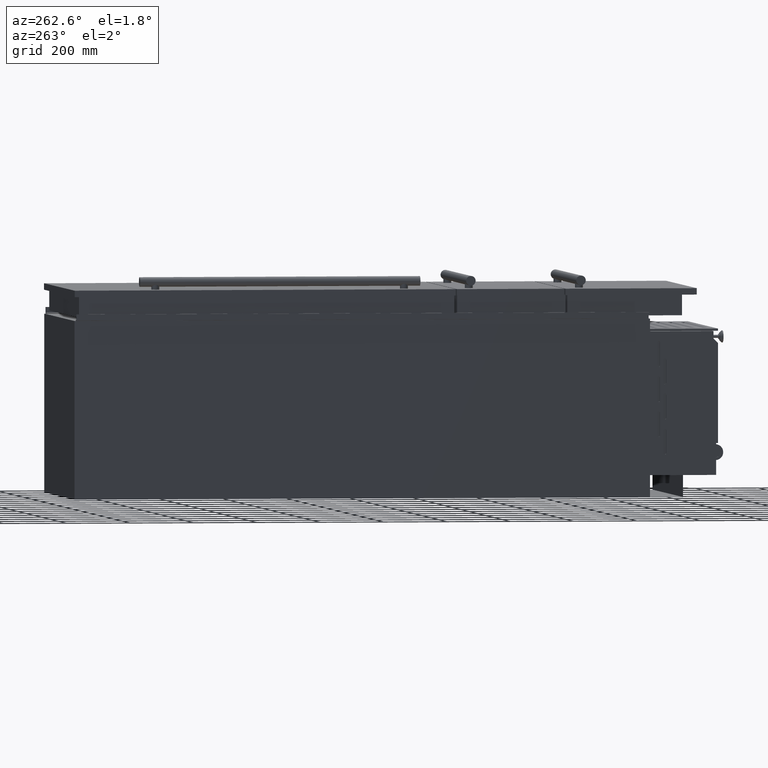
[diagram: clean part render]
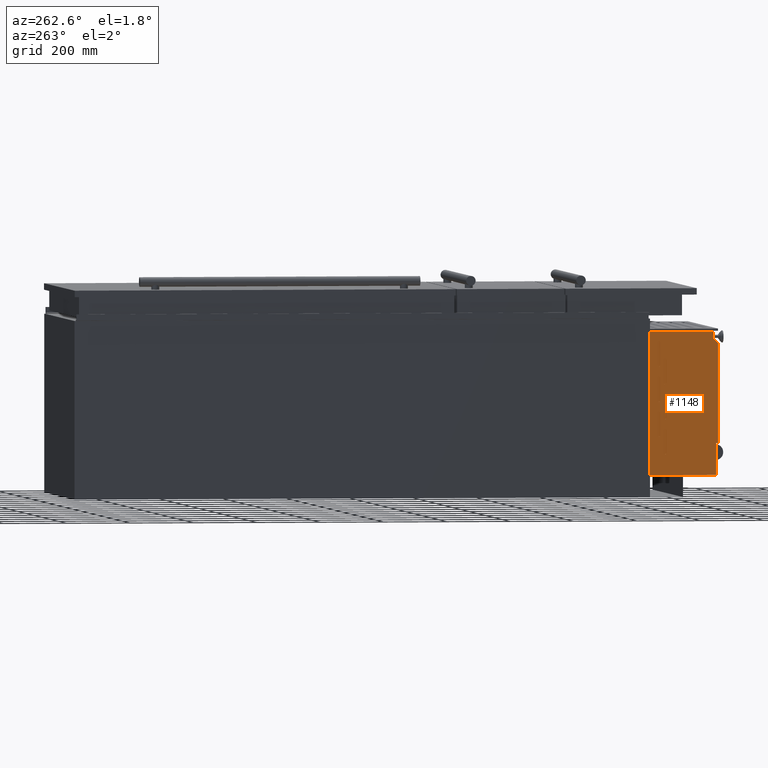
[diagram: same view with one face highlighted and labeled with its STEP entity id]
A machine part, auxiliary view. The second image highlights one B-rep face of the part: STEP entity #1148.
In plain terms, the highlighted planar face has unit normal (1, 0, 0).
Its self-contained STEP definition (entity closure, byte-faithful):
#17 = ORIENTED_EDGE ( 'NONE', *, *, #10392, .T. ) ;
#163 = CIRCLE ( 'NONE', #571, 4.000000000000003600 ) ;
#167 = VECTOR ( 'NONE', #3476, 1000.000000000000000 ) ;
#190 = ORIENTED_EDGE ( 'NONE', *, *, #7250, .T. ) ;
#192 = EDGE_CURVE ( 'NONE', #6109, #6530, #6331, .T. ) ;
#225 = AXIS2_PLACEMENT_3D ( 'NONE', #8890, #3399, #5663 ) ;
#235 = DIRECTION ( 'NONE',  ( 1.000000000000000000, -0.0000000000000000000, -0.0000000000000000000 ) ) ;
#246 = VERTEX_POINT ( 'NONE', #12949 ) ;
#305 = DIRECTION ( 'NONE',  ( 0.0000000000000000000, 0.0000000000000000000, -1.000000000000000000 ) ) ;
#316 = VECTOR ( 'NONE', #2005, 1000.000000000000000 ) ;
#331 = CARTESIAN_POINT ( 'NONE',  ( -368.0000000000000000, -828.3499999999998000, 95.00000000000011400 ) ) ;
#344 = DIRECTION ( 'NONE',  ( -0.0000000000000000000, -1.000000000000000000, 9.570888143321735400E-015 ) ) ;
#360 = CARTESIAN_POINT ( 'NONE',  ( -368.0000000000000000, -1010.050000000000800, -210.3999999999998400 ) ) ;
#375 = ORIENTED_EDGE ( 'NONE', *, *, #6849, .T. ) ;
#434 = ORIENTED_EDGE ( 'NONE', *, *, #6132, .T. ) ;
#492 = CARTESIAN_POINT ( 'NONE',  ( -368.0000000000000000, -1015.849999999999900, 203.1000000000014200 ) ) ;
#520 = VECTOR ( 'NONE', #344, 1000.000000000000000 ) ;
#571 = AXIS2_PLACEMENT_3D ( 'NONE', #9684, #853, #6417 ) ;
#585 = DIRECTION ( 'NONE',  ( 0.0000000000000000000, 0.7071067811865483500, 0.7071067811865468000 ) ) ;
#673 = AXIS2_PLACEMENT_3D ( 'NONE', #5799, #5704, #9046 ) ;
#759 = EDGE_LOOP ( 'NONE', ( #1526, #13920, #1380, #10885, #9723 ) ) ;
#783 = ORIENTED_EDGE ( 'NONE', *, *, #7093, .T. ) ;
#785 = EDGE_LOOP ( 'NONE', ( #1121, #2946, #7087, #17, #5809 ) ) ;
#853 = DIRECTION ( 'NONE',  ( 1.000000000000000000, -0.0000000000000000000, -0.0000000000000000000 ) ) ;
#879 = VERTEX_POINT ( 'NONE', #13122 ) ;
#907 = EDGE_CURVE ( 'NONE', #9175, #4471, #13121, .T. ) ;
#912 = ORIENTED_EDGE ( 'NONE', *, *, #6518, .T. ) ;
#944 = CIRCLE ( 'NONE', #9042, 3.999999999999892500 ) ;
#996 = CARTESIAN_POINT ( 'NONE',  ( -368.0000000000000000, -1001.849999999999900, 217.1000000000014200 ) ) ;
#1040 = DIRECTION ( 'NONE',  ( 0.0000000000000000000, 0.0000000000000000000, -1.000000000000000000 ) ) ;
#1047 = VERTEX_POINT ( 'NONE', #9031 ) ;
#1048 = ORIENTED_EDGE ( 'NONE', *, *, #192, .T. ) ;
#1053 = CARTESIAN_POINT ( 'NONE',  ( -368.0000000000000000, -844.3499999999996800, 40.00000000000014200 ) ) ;
#1121 = ORIENTED_EDGE ( 'NONE', *, *, #7466, .T. ) ;
#1148 = ADVANCED_FACE ( 'NONE', ( #13094, #13753, #5153, #3091, #10004, #7928, #11222 ), #6402, .F. ) ;
#1165 = ORIENTED_EDGE ( 'NONE', *, *, #907, .T. ) ;
#1176 = DIRECTION ( 'NONE',  ( 0.0000000000000000000, 0.0000000000000000000, -1.000000000000000000 ) ) ;
#1327 = LINE ( 'NONE', #13738, #13525 ) ;
#1353 = VERTEX_POINT ( 'NONE', #12274 ) ;
#1354 = EDGE_CURVE ( 'NONE', #9540, #5365, #12227, .T. ) ;
#1380 = ORIENTED_EDGE ( 'NONE', *, *, #2059, .T. ) ;
#1395 = DIRECTION ( 'NONE',  ( -0.0000000000000000000, -1.000000000000000000, -0.0000000000000000000 ) ) ;
#1526 = ORIENTED_EDGE ( 'NONE', *, *, #13129, .T. ) ;
#1612 = CARTESIAN_POINT ( 'NONE',  ( -368.0000000000000000, -844.3499999999996800, 40.00000000000014200 ) ) ;
#1623 = DIRECTION ( 'NONE',  ( -0.0000000000000000000, 2.220446049250291000E-015, 1.000000000000000000 ) ) ;
#1687 = VERTEX_POINT ( 'NONE', #5439 ) ;
#1748 = CARTESIAN_POINT ( 'NONE',  ( -368.0000000000000000, -852.3499999999995700, 150.0000000000001400 ) ) ;
#1780 = VECTOR ( 'NONE', #1623, 1000.000000000000000 ) ;
#1789 = EDGE_CURVE ( 'NONE', #10063, #246, #3048, .T. ) ;
#1800 = EDGE_CURVE ( 'NONE', #8079, #7080, #5108, .T. ) ;
#1819 = AXIS2_PLACEMENT_3D ( 'NONE', #5008, #11544, #6073 ) ;
#1874 = EDGE_LOOP ( 'NONE', ( #6788, #6749, #375, #8096, #7589 ) ) ;
#1890 = CARTESIAN_POINT ( 'NONE',  ( -367.9999999999997200, -801.3499999999998000, 240.0000000000001400 ) ) ;
#1914 = DIRECTION ( 'NONE',  ( 0.0000000000000000000, 0.0000000000000000000, -1.000000000000000000 ) ) ;
#1971 = CARTESIAN_POINT ( 'NONE',  ( -368.0000000000000000, -832.3499999999995700, 205.0000000000001100 ) ) ;
#2005 = DIRECTION ( 'NONE',  ( 0.0000000000000000000, 0.0000000000000000000, 1.000000000000000000 ) ) ;
#2033 = VERTEX_POINT ( 'NONE', #4023 ) ;
#2059 = EDGE_CURVE ( 'NONE', #3584, #13433, #12534, .T. ) ;
#2251 = DIRECTION ( 'NONE',  ( 0.0000000000000000000, 0.0000000000000000000, -1.000000000000000000 ) ) ;
#2259 = ORIENTED_EDGE ( 'NONE', *, *, #7115, .F. ) ;
#2363 = VECTOR ( 'NONE', #9675, 1000.000000000000000 ) ;
#2417 = EDGE_CURVE ( 'NONE', #1353, #8494, #8537, .T. ) ;
#2419 = EDGE_CURVE ( 'NONE', #4533, #3899, #6829, .T. ) ;
#2429 = CARTESIAN_POINT ( 'NONE',  ( -368.0000000000000000, -828.3499999999996800, -10.99999999999987700 ) ) ;
#2491 = CARTESIAN_POINT ( 'NONE',  ( -368.0000000000000000, -852.3499999999996800, -69.99999999999985800 ) ) ;
#2520 = VECTOR ( 'NONE', #8700, 1000.000000000000000 ) ;
#2561 = EDGE_CURVE ( 'NONE', #6151, #9540, #12830, .T. ) ;
#2577 = VECTOR ( 'NONE', #4817, 1000.000000000000000 ) ;
#2580 = CARTESIAN_POINT ( 'NONE',  ( -368.0000000000000000, -848.3499999999996800, 150.0000000000001400 ) ) ;
#2636 = CARTESIAN_POINT ( 'NONE',  ( -368.0000000000000000, -824.3499999999998000, 205.0000000000001100 ) ) ;
#2693 = CIRCLE ( 'NONE', #13715, 4.000000000000003600 ) ;
#2714 = EDGE_CURVE ( 'NONE', #9681, #11293, #3732, .T. ) ;
#2788 = VECTOR ( 'NONE', #9808, 1000.000000000000000 ) ;
#2842 = DIRECTION ( 'NONE',  ( 0.0000000000000000000, 0.0000000000000000000, -1.000000000000000000 ) ) ;
#2886 = CARTESIAN_POINT ( 'NONE',  ( -368.0000000000000000, -828.3499999999998000, 205.0000000000001100 ) ) ;
#2906 = ORIENTED_EDGE ( 'NONE', *, *, #9577, .T. ) ;
#2946 = ORIENTED_EDGE ( 'NONE', *, *, #9412, .T. ) ;
#3009 = CARTESIAN_POINT ( 'NONE',  ( -368.0000000000000000, -1015.849999999999900, 203.1000000000014200 ) ) ;
#3043 = CIRCLE ( 'NONE', #10339, 3.999999999999892500 ) ;
#3048 = LINE ( 'NONE', #6903, #167 ) ;
#3076 = DIRECTION ( 'NONE',  ( 0.0000000000000000000, 0.0000000000000000000, -1.000000000000000000 ) ) ;
#3091 = FACE_OUTER_BOUND ( 'NONE', #8726, .T. ) ;
#3164 = CARTESIAN_POINT ( 'NONE',  ( -368.0000000000000000, -848.3499999999996800, 44.00000000000014200 ) ) ;
#3294 = DIRECTION ( 'NONE',  ( 1.000000000000000000, -0.0000000000000000000, -0.0000000000000000000 ) ) ;
#3342 = ORIENTED_EDGE ( 'NONE', *, *, #1789, .T. ) ;
#3399 = DIRECTION ( 'NONE',  ( 1.000000000000000000, -0.0000000000000000000, -0.0000000000000000000 ) ) ;
#3476 = DIRECTION ( 'NONE',  ( 0.0000000000000000000, 0.0000000000000000000, -1.000000000000000000 ) ) ;
#3487 = EDGE_CURVE ( 'NONE', #13433, #2033, #8668, .T. ) ;
#3520 = CARTESIAN_POINT ( 'NONE',  ( -368.0000000000000000, -832.3499999999996800, -14.99999999999988100 ) ) ;
#3568 = LINE ( 'NONE', #4732, #5297 ) ;
#3571 = EDGE_CURVE ( 'NONE', #4686, #12453, #5194, .T. ) ;
#3572 = DIRECTION ( 'NONE',  ( 0.0000000000000000000, 0.0000000000000000000, -1.000000000000000000 ) ) ;
#3584 = VERTEX_POINT ( 'NONE', #13319 ) ;
#3617 = VERTEX_POINT ( 'NONE', #12458 ) ;
#3621 = DIRECTION ( 'NONE',  ( 1.000000000000000000, -0.0000000000000000000, -0.0000000000000000000 ) ) ;
#3688 = CARTESIAN_POINT ( 'NONE',  ( -368.0000000000000000, -848.3499999999996800, -69.99999999999985800 ) ) ;
#3714 = VECTOR ( 'NONE', #4584, 1000.000000000000000 ) ;
#3732 = CIRCLE ( 'NONE', #7275, 3.999999999999892500 ) ;
#3763 = VECTOR ( 'NONE', #585, 999.9999999999998900 ) ;
#3899 = VERTEX_POINT ( 'NONE', #1890 ) ;
#4023 = CARTESIAN_POINT ( 'NONE',  ( -368.0000000000000000, -824.3499999999999100, 133.0000000000001100 ) ) ;
#4027 = CARTESIAN_POINT ( 'NONE',  ( -368.0000000000000000, -828.3499999999998000, 209.0000000000000300 ) ) ;
#4085 = LINE ( 'NONE', #492, #3763 ) ;
#4213 = EDGE_CURVE ( 'NONE', #12453, #879, #10584, .T. ) ;
#4226 = DIRECTION ( 'NONE',  ( 1.000000000000000000, -0.0000000000000000000, -0.0000000000000000000 ) ) ;
#4331 = CIRCLE ( 'NONE', #4756, 4.000000000000003600 ) ;
#4436 = EDGE_CURVE ( 'NONE', #7080, #9175, #944, .T. ) ;
#4471 = VERTEX_POINT ( 'NONE', #4658 ) ;
#4524 = VECTOR ( 'NONE', #1395, 1000.000000000000000 ) ;
#4533 = VERTEX_POINT ( 'NONE', #10433 ) ;
#4584 = DIRECTION ( 'NONE',  ( 0.0000000000000000000, 0.0000000000000000000, 1.000000000000000000 ) ) ;
#4658 = CARTESIAN_POINT ( 'NONE',  ( -368.0000000000000000, -852.3499999999995700, 78.00000000000014200 ) ) ;
#4686 = VERTEX_POINT ( 'NONE', #11765 ) ;
#4706 = DIRECTION ( 'NONE',  ( 1.000000000000000000, -0.0000000000000000000, -0.0000000000000000000 ) ) ;
#4707 = DIRECTION ( 'NONE',  ( 1.000000000000000000, -0.0000000000000000000, -0.0000000000000000000 ) ) ;
#4710 = DIRECTION ( 'NONE',  ( 0.0000000000000000000, 0.0000000000000000000, -1.000000000000000000 ) ) ;
#4732 = CARTESIAN_POINT ( 'NONE',  ( -368.0000000000000000, -832.3499999999995700, 95.00000000000011400 ) ) ;
#4756 = AXIS2_PLACEMENT_3D ( 'NONE', #13383, #3621, #13475 ) ;
#4817 = DIRECTION ( 'NONE',  ( 0.0000000000000000000, 0.0000000000000000000, 1.000000000000000000 ) ) ;
#4843 = AXIS2_PLACEMENT_3D ( 'NONE', #3688, #4707, #5896 ) ;
#4955 = CIRCLE ( 'NONE', #8270, 3.999999999999892500 ) ;
#5008 = CARTESIAN_POINT ( 'NONE',  ( -368.0000000000000000, -828.3499999999998000, 95.00000000000011400 ) ) ;
#5108 = CIRCLE ( 'NONE', #12444, 3.999999999999892500 ) ;
#5114 = VERTEX_POINT ( 'NONE', #12644 ) ;
#5120 = DIRECTION ( 'NONE',  ( 0.0000000000000000000, 0.0000000000000000000, -1.000000000000000000 ) ) ;
#5153 = FACE_BOUND ( 'NONE', #8323, .T. ) ;
#5194 = LINE ( 'NONE', #8988, #4524 ) ;
#5288 = CARTESIAN_POINT ( 'NONE',  ( -368.0000000000000000, -848.3499999999996800, 78.00000000000014200 ) ) ;
#5291 = EDGE_CURVE ( 'NONE', #4471, #9420, #10013, .T. ) ;
#5297 = VECTOR ( 'NONE', #8092, 1000.000000000000000 ) ;
#5365 = VERTEX_POINT ( 'NONE', #3164 ) ;
#5382 = CARTESIAN_POINT ( 'NONE',  ( -368.0000000000000000, -1015.849999999999900, 279.9999999999999400 ) ) ;
#5439 = CARTESIAN_POINT ( 'NONE',  ( -368.0000000000000000, -1015.849999999999700, -110.3999999999987800 ) ) ;
#5603 = VERTEX_POINT ( 'NONE', #11523 ) ;
#5629 = EDGE_CURVE ( 'NONE', #9420, #8079, #13434, .T. ) ;
#5663 = DIRECTION ( 'NONE',  ( 0.0000000000000000000, 0.0000000000000000000, -1.000000000000000000 ) ) ;
#5704 = DIRECTION ( 'NONE',  ( 1.000000000000000000, -0.0000000000000000000, -0.0000000000000000000 ) ) ;
#5799 = CARTESIAN_POINT ( 'NONE',  ( -368.0000000000000000, -828.3499999999996800, -14.99999999999988100 ) ) ;
#5809 = ORIENTED_EDGE ( 'NONE', *, *, #2417, .T. ) ;
#5889 = VECTOR ( 'NONE', #9876, 1000.000000000000000 ) ;
#5896 = DIRECTION ( 'NONE',  ( 0.0000000000000000000, 0.0000000000000000000, -1.000000000000000000 ) ) ;
#5992 = CARTESIAN_POINT ( 'NONE',  ( -368.0000000000000000, -848.3499999999996800, -65.99999999999984400 ) ) ;
#6049 = VERTEX_POINT ( 'NONE', #8020 ) ;
#6073 = DIRECTION ( 'NONE',  ( 0.0000000000000000000, 0.0000000000000000000, -1.000000000000000000 ) ) ;
#6109 = VERTEX_POINT ( 'NONE', #10288 ) ;
#6132 = EDGE_CURVE ( 'NONE', #14067, #1047, #4085, .T. ) ;
#6151 = VERTEX_POINT ( 'NONE', #13679 ) ;
#6159 = CIRCLE ( 'NONE', #1819, 3.999999999999892500 ) ;
#6296 = CARTESIAN_POINT ( 'NONE',  ( -368.0000000000000000, 0.0000000000000000000, 0.0000000000000000000 ) ) ;
#6331 = CIRCLE ( 'NONE', #8426, 4.000000000000003600 ) ;
#6357 = ORIENTED_EDGE ( 'NONE', *, *, #4436, .T. ) ;
#6402 = PLANE ( 'NONE',  #8540 ) ;
#6417 = DIRECTION ( 'NONE',  ( 0.0000000000000000000, 0.0000000000000000000, -1.000000000000000000 ) ) ;
#6518 = EDGE_CURVE ( 'NONE', #11293, #10484, #3568, .T. ) ;
#6530 = VERTEX_POINT ( 'NONE', #2429 ) ;
#6623 = CARTESIAN_POINT ( 'NONE',  ( -368.0000000000000000, -852.3499999999995700, 150.0000000000001400 ) ) ;
#6653 = DIRECTION ( 'NONE',  ( 1.000000000000000000, -0.0000000000000000000, -0.0000000000000000000 ) ) ;
#6705 = VECTOR ( 'NONE', #4710, 1000.000000000000000 ) ;
#6737 = DIRECTION ( 'NONE',  ( 0.0000000000000000000, 0.0000000000000000000, -1.000000000000000000 ) ) ;
#6749 = ORIENTED_EDGE ( 'NONE', *, *, #13402, .T. ) ;
#6758 = ORIENTED_EDGE ( 'NONE', *, *, #2714, .T. ) ;
#6779 = DIRECTION ( 'NONE',  ( 1.000000000000000000, -0.0000000000000000000, -0.0000000000000000000 ) ) ;
#6788 = ORIENTED_EDGE ( 'NONE', *, *, #1354, .T. ) ;
#6803 = CARTESIAN_POINT ( 'NONE',  ( -368.0000000000000000, -848.3499999999996800, 150.0000000000001400 ) ) ;
#6829 = LINE ( 'NONE', #11723, #9404 ) ;
#6849 = EDGE_CURVE ( 'NONE', #5603, #8145, #9086, .T. ) ;
#6903 = CARTESIAN_POINT ( 'NONE',  ( -368.0000000000000000, -832.3499999999996800, -14.99999999999988100 ) ) ;
#6940 = DIRECTION ( 'NONE',  ( 0.0000000000000000000, 0.0000000000000000000, -1.000000000000000000 ) ) ;
#7009 = VECTOR ( 'NONE', #6940, 1000.000000000000000 ) ;
#7080 = VERTEX_POINT ( 'NONE', #13956 ) ;
#7087 = ORIENTED_EDGE ( 'NONE', *, *, #12574, .T. ) ;
#7093 = EDGE_CURVE ( 'NONE', #14190, #6109, #7165, .T. ) ;
#7108 = CARTESIAN_POINT ( 'NONE',  ( -368.0000000000000000, -844.3499999999996800, -69.99999999999985800 ) ) ;
#7115 = EDGE_CURVE ( 'NONE', #4686, #3899, #1327, .T. ) ;
#7154 = CIRCLE ( 'NONE', #4843, 4.000000000000003600 ) ;
#7165 = LINE ( 'NONE', #9610, #316 ) ;
#7250 = EDGE_CURVE ( 'NONE', #3617, #7715, #11323, .T. ) ;
#7275 = AXIS2_PLACEMENT_3D ( 'NONE', #331, #10175, #3572 ) ;
#7447 = CARTESIAN_POINT ( 'NONE',  ( -368.0000000000000000, -852.3499999999996800, -31.99999999999985400 ) ) ;
#7466 = EDGE_CURVE ( 'NONE', #8494, #7571, #7154, .T. ) ;
#7571 = VERTEX_POINT ( 'NONE', #5992 ) ;
#7585 = CARTESIAN_POINT ( 'NONE',  ( -368.0000000000000000, -824.3499999999998000, 95.00000000000011400 ) ) ;
#7589 = ORIENTED_EDGE ( 'NONE', *, *, #2561, .T. ) ;
#7627 = ORIENTED_EDGE ( 'NONE', *, *, #4213, .T. ) ;
#7692 = VECTOR ( 'NONE', #3076, 1000.000000000000000 ) ;
#7715 = VERTEX_POINT ( 'NONE', #9629 ) ;
#7901 = ORIENTED_EDGE ( 'NONE', *, *, #5291, .T. ) ;
#7928 = FACE_BOUND ( 'NONE', #759, .T. ) ;
#8020 = CARTESIAN_POINT ( 'NONE',  ( -368.0000000000000000, -852.3499999999996800, -69.99999999999985800 ) ) ;
#8079 = VERTEX_POINT ( 'NONE', #8213 ) ;
#8092 = DIRECTION ( 'NONE',  ( -0.0000000000000000000, -1.541976423090495200E-015, -1.000000000000000000 ) ) ;
#8096 = ORIENTED_EDGE ( 'NONE', *, *, #9927, .T. ) ;
#8145 = VERTEX_POINT ( 'NONE', #7447 ) ;
#8213 = CARTESIAN_POINT ( 'NONE',  ( -368.0000000000000000, -844.3499999999998000, 150.0000000000001400 ) ) ;
#8270 = AXIS2_PLACEMENT_3D ( 'NONE', #2886, #10762, #2842 ) ;
#8323 = EDGE_LOOP ( 'NONE', ( #10821, #6357, #1165, #7901, #9543 ) ) ;
#8326 = CARTESIAN_POINT ( 'NONE',  ( -368.0000000000000000, -844.3499999999996800, -69.99999999999985800 ) ) ;
#8332 = ORIENTED_EDGE ( 'NONE', *, *, #13427, .F. ) ;
#8426 = AXIS2_PLACEMENT_3D ( 'NONE', #13143, #8753, #9721 ) ;
#8435 = ORIENTED_EDGE ( 'NONE', *, *, #9707, .T. ) ;
#8494 = VERTEX_POINT ( 'NONE', #7108 ) ;
#8537 = LINE ( 'NONE', #8326, #12688 ) ;
#8540 = AXIS2_PLACEMENT_3D ( 'NONE', #6296, #14007, #5120 ) ;
#8575 = AXIS2_PLACEMENT_3D ( 'NONE', #9730, #4226, #1040 ) ;
#8579 = LINE ( 'NONE', #11309, #520 ) ;
#8668 = CIRCLE ( 'NONE', #9666, 3.999999999999781500 ) ;
#8695 = CIRCLE ( 'NONE', #225, 4.000000000000003600 ) ;
#8700 = DIRECTION ( 'NONE',  ( 0.0000000000000000000, -1.541976423090495200E-015, 1.000000000000000000 ) ) ;
#8726 = EDGE_LOOP ( 'NONE', ( #14019, #2259, #13852, #7627, #2906, #8332, #434, #8754 ) ) ;
#8753 = DIRECTION ( 'NONE',  ( 1.000000000000000000, -0.0000000000000000000, -0.0000000000000000000 ) ) ;
#8754 = ORIENTED_EDGE ( 'NONE', *, *, #11637, .T. ) ;
#8890 = CARTESIAN_POINT ( 'NONE',  ( -368.0000000000000000, -828.3499999999996800, 23.00000000000011700 ) ) ;
#8960 = EDGE_LOOP ( 'NONE', ( #8435, #6758, #912, #12325, #190 ) ) ;
#8976 = DIRECTION ( 'NONE',  ( 1.000000000000000000, -0.0000000000000000000, -0.0000000000000000000 ) ) ;
#8988 = CARTESIAN_POINT ( 'NONE',  ( -368.0000000000000000, -1010.050000000000800, -210.3999999999998400 ) ) ;
#9031 = CARTESIAN_POINT ( 'NONE',  ( -368.0000000000000000, -1001.849999999999900, 217.1000000000014200 ) ) ;
#9042 = AXIS2_PLACEMENT_3D ( 'NONE', #2580, #4706, #305 ) ;
#9046 = DIRECTION ( 'NONE',  ( 0.0000000000000000000, 0.0000000000000000000, -1.000000000000000000 ) ) ;
#9086 = LINE ( 'NONE', #11287, #7009 ) ;
#9167 = DIRECTION ( 'NONE',  ( 0.0000000000000000000, 0.0000000000000000000, -1.000000000000000000 ) ) ;
#9168 = EDGE_CURVE ( 'NONE', #9173, #3584, #4955, .T. ) ;
#9173 = VERTEX_POINT ( 'NONE', #4027 ) ;
#9175 = VERTEX_POINT ( 'NONE', #1748 ) ;
#9248 = CARTESIAN_POINT ( 'NONE',  ( -368.0000000000000000, -828.3499999999998000, 205.0000000000001100 ) ) ;
#9351 = VERTEX_POINT ( 'NONE', #14159 ) ;
#9404 = VECTOR ( 'NONE', #12812, 1000.000000000000000 ) ;
#9412 = EDGE_CURVE ( 'NONE', #7571, #6049, #11700, .T. ) ;
#9420 = VERTEX_POINT ( 'NONE', #13247 ) ;
#9540 = VERTEX_POINT ( 'NONE', #1612 ) ;
#9543 = ORIENTED_EDGE ( 'NONE', *, *, #5629, .T. ) ;
#9577 = EDGE_CURVE ( 'NONE', #879, #1687, #8579, .T. ) ;
#9610 = CARTESIAN_POINT ( 'NONE',  ( -368.0000000000000000, -824.3499999999996800, -14.99999999999988100 ) ) ;
#9623 = LINE ( 'NONE', #2491, #6705 ) ;
#9629 = CARTESIAN_POINT ( 'NONE',  ( -368.0000000000000000, -824.3499999999998000, 95.00000000000011400 ) ) ;
#9666 = AXIS2_PLACEMENT_3D ( 'NONE', #14137, #3294, #2251 ) ;
#9675 = DIRECTION ( 'NONE',  ( 0.0000000000000000000, 1.541976423090495000E-015, -1.000000000000000000 ) ) ;
#9681 = VERTEX_POINT ( 'NONE', #12645 ) ;
#9684 = CARTESIAN_POINT ( 'NONE',  ( -368.0000000000000000, -848.3499999999996800, -31.99999999999985400 ) ) ;
#9707 = EDGE_CURVE ( 'NONE', #7715, #9681, #6159, .T. ) ;
#9721 = DIRECTION ( 'NONE',  ( 0.0000000000000000000, 0.0000000000000000000, -1.000000000000000000 ) ) ;
#9723 = ORIENTED_EDGE ( 'NONE', *, *, #12502, .T. ) ;
#9730 = CARTESIAN_POINT ( 'NONE',  ( -368.0000000000000000, -848.3499999999996800, 40.00000000000014200 ) ) ;
#9808 = DIRECTION ( 'NONE',  ( 0.0000000000000000000, 0.0000000000000000000, -1.000000000000000000 ) ) ;
#9856 = EDGE_LOOP ( 'NONE', ( #1048, #11586, #3342, #11448, #783 ) ) ;
#9876 = DIRECTION ( 'NONE',  ( 0.0000000000000000000, 0.0000000000000000000, 1.000000000000000000 ) ) ;
#9920 = DIRECTION ( 'NONE',  ( 0.0000000000000000000, 0.0000000000000000000, -1.000000000000000000 ) ) ;
#9927 = EDGE_CURVE ( 'NONE', #8145, #6151, #163, .T. ) ;
#9976 = CARTESIAN_POINT ( 'NONE',  ( -368.0000000000000000, -848.3499999999996800, -69.99999999999985800 ) ) ;
#10004 = FACE_BOUND ( 'NONE', #1874, .T. ) ;
#10013 = CIRCLE ( 'NONE', #12663, 3.999999999999892500 ) ;
#10063 = VERTEX_POINT ( 'NONE', #3520 ) ;
#10108 = LINE ( 'NONE', #5382, #7692 ) ;
#10175 = DIRECTION ( 'NONE',  ( 1.000000000000000000, -0.0000000000000000000, -0.0000000000000000000 ) ) ;
#10288 = CARTESIAN_POINT ( 'NONE',  ( -368.0000000000000000, -824.3499999999996800, -14.99999999999988100 ) ) ;
#10339 = AXIS2_PLACEMENT_3D ( 'NONE', #9248, #10370, #9167 ) ;
#10370 = DIRECTION ( 'NONE',  ( 1.000000000000000000, -0.0000000000000000000, -0.0000000000000000000 ) ) ;
#10392 = EDGE_CURVE ( 'NONE', #9351, #1353, #2693, .T. ) ;
#10433 = CARTESIAN_POINT ( 'NONE',  ( -368.0000000000000000, -1001.849999999999900, 240.0000000000001400 ) ) ;
#10443 = EDGE_CURVE ( 'NONE', #10484, #3617, #8695, .T. ) ;
#10466 = CIRCLE ( 'NONE', #8575, 4.000000000000003600 ) ;
#10484 = VERTEX_POINT ( 'NONE', #11047 ) ;
#10534 = EDGE_CURVE ( 'NONE', #6530, #10063, #13676, .T. ) ;
#10584 = LINE ( 'NONE', #13725, #1780 ) ;
#10762 = DIRECTION ( 'NONE',  ( 1.000000000000000000, -0.0000000000000000000, -0.0000000000000000000 ) ) ;
#10809 = CARTESIAN_POINT ( 'NONE',  ( -368.0000000000000000, -832.3499999999994500, 133.0000000000001100 ) ) ;
#10821 = ORIENTED_EDGE ( 'NONE', *, *, #1800, .T. ) ;
#10885 = ORIENTED_EDGE ( 'NONE', *, *, #3487, .T. ) ;
#10944 = DIRECTION ( 'NONE',  ( 1.000000000000000000, -0.0000000000000000000, -0.0000000000000000000 ) ) ;
#10985 = AXIS2_PLACEMENT_3D ( 'NONE', #9976, #235, #9920 ) ;
#11047 = CARTESIAN_POINT ( 'NONE',  ( -368.0000000000000000, -832.3499999999996800, 23.00000000000011700 ) ) ;
#11222 = FACE_BOUND ( 'NONE', #9856, .T. ) ;
#11251 = AXIS2_PLACEMENT_3D ( 'NONE', #13374, #6779, #6737 ) ;
#11287 = CARTESIAN_POINT ( 'NONE',  ( -368.0000000000000000, -852.3499999999996800, 40.00000000000014200 ) ) ;
#11293 = VERTEX_POINT ( 'NONE', #13576 ) ;
#11309 = CARTESIAN_POINT ( 'NONE',  ( -368.0000000000000000, -1015.849999999999700, -110.3999999999987800 ) ) ;
#11323 = LINE ( 'NONE', #7585, #2520 ) ;
#11377 = LINE ( 'NONE', #2636, #13580 ) ;
#11448 = ORIENTED_EDGE ( 'NONE', *, *, #11761, .T. ) ;
#11523 = CARTESIAN_POINT ( 'NONE',  ( -368.0000000000000000, -852.3499999999996800, 40.00000000000014200 ) ) ;
#11544 = DIRECTION ( 'NONE',  ( 1.000000000000000000, -0.0000000000000000000, -0.0000000000000000000 ) ) ;
#11586 = ORIENTED_EDGE ( 'NONE', *, *, #10534, .T. ) ;
#11637 = EDGE_CURVE ( 'NONE', #1047, #4533, #12105, .T. ) ;
#11700 = CIRCLE ( 'NONE', #10985, 4.000000000000003600 ) ;
#11723 = CARTESIAN_POINT ( 'NONE',  ( -368.0000000000000000, -1001.849999999999900, 240.0000000000001400 ) ) ;
#11761 = EDGE_CURVE ( 'NONE', #246, #14190, #4331, .T. ) ;
#11765 = CARTESIAN_POINT ( 'NONE',  ( -367.9999999999997200, -801.3499999999998000, -210.3999999999998400 ) ) ;
#11807 = DIRECTION ( 'NONE',  ( 0.0000000000000000000, 0.0000000000000000000, 1.000000000000000000 ) ) ;
#11830 = CARTESIAN_POINT ( 'NONE',  ( -368.0000000000000000, -848.3499999999996800, -141.9999999999998600 ) ) ;
#12105 = LINE ( 'NONE', #996, #5889 ) ;
#12168 = CARTESIAN_POINT ( 'NONE',  ( -368.0000000000000000, -824.3499999999996800, -86.99999999999988600 ) ) ;
#12227 = CIRCLE ( 'NONE', #11251, 4.000000000000003600 ) ;
#12274 = CARTESIAN_POINT ( 'NONE',  ( -368.0000000000000000, -844.3499999999996800, -141.9999999999998600 ) ) ;
#12325 = ORIENTED_EDGE ( 'NONE', *, *, #10443, .T. ) ;
#12415 = DIRECTION ( 'NONE',  ( 0.0000000000000000000, 1.541976423090495000E-015, 1.000000000000000000 ) ) ;
#12434 = CARTESIAN_POINT ( 'NONE',  ( -368.0000000000000000, -844.3499999999998000, 150.0000000000001400 ) ) ;
#12444 = AXIS2_PLACEMENT_3D ( 'NONE', #6803, #8976, #13521 ) ;
#12453 = VERTEX_POINT ( 'NONE', #360 ) ;
#12458 = CARTESIAN_POINT ( 'NONE',  ( -368.0000000000000000, -824.3499999999996800, 23.00000000000011700 ) ) ;
#12502 = EDGE_CURVE ( 'NONE', #2033, #5114, #11377, .T. ) ;
#12534 = LINE ( 'NONE', #1971, #2363 ) ;
#12574 = EDGE_CURVE ( 'NONE', #6049, #9351, #9623, .T. ) ;
#12644 = CARTESIAN_POINT ( 'NONE',  ( -368.0000000000000000, -824.3499999999998000, 205.0000000000001100 ) ) ;
#12645 = CARTESIAN_POINT ( 'NONE',  ( -368.0000000000000000, -828.3499999999998000, 99.00000000000000000 ) ) ;
#12663 = AXIS2_PLACEMENT_3D ( 'NONE', #5288, #6653, #1176 ) ;
#12688 = VECTOR ( 'NONE', #11807, 1000.000000000000000 ) ;
#12812 = DIRECTION ( 'NONE',  ( 0.0000000000000000000, 1.000000000000000000, 0.0000000000000000000 ) ) ;
#12830 = LINE ( 'NONE', #1053, #3714 ) ;
#12949 = CARTESIAN_POINT ( 'NONE',  ( -368.0000000000000000, -832.3499999999995700, -86.99999999999988600 ) ) ;
#13094 = FACE_BOUND ( 'NONE', #8960, .T. ) ;
#13121 = LINE ( 'NONE', #6623, #2788 ) ;
#13122 = CARTESIAN_POINT ( 'NONE',  ( -368.0000000000000000, -1010.050000000000500, -110.3999999999988300 ) ) ;
#13129 = EDGE_CURVE ( 'NONE', #5114, #9173, #3043, .T. ) ;
#13143 = CARTESIAN_POINT ( 'NONE',  ( -368.0000000000000000, -828.3499999999996800, -14.99999999999988100 ) ) ;
#13247 = CARTESIAN_POINT ( 'NONE',  ( -368.0000000000000000, -844.3499999999998000, 78.00000000000014200 ) ) ;
#13319 = CARTESIAN_POINT ( 'NONE',  ( -368.0000000000000000, -832.3499999999995700, 205.0000000000001100 ) ) ;
#13374 = CARTESIAN_POINT ( 'NONE',  ( -368.0000000000000000, -848.3499999999996800, 40.00000000000014200 ) ) ;
#13383 = CARTESIAN_POINT ( 'NONE',  ( -368.0000000000000000, -828.3499999999995700, -86.99999999999988600 ) ) ;
#13402 = EDGE_CURVE ( 'NONE', #5365, #5603, #10466, .T. ) ;
#13427 = EDGE_CURVE ( 'NONE', #14067, #1687, #10108, .T. ) ;
#13433 = VERTEX_POINT ( 'NONE', #10809 ) ;
#13434 = LINE ( 'NONE', #12434, #2577 ) ;
#13475 = DIRECTION ( 'NONE',  ( 0.0000000000000000000, 0.0000000000000000000, -1.000000000000000000 ) ) ;
#13521 = DIRECTION ( 'NONE',  ( 0.0000000000000000000, 0.0000000000000000000, -1.000000000000000000 ) ) ;
#13525 = VECTOR ( 'NONE', #14051, 1000.000000000000000 ) ;
#13576 = CARTESIAN_POINT ( 'NONE',  ( -368.0000000000000000, -832.3499999999995700, 95.00000000000011400 ) ) ;
#13580 = VECTOR ( 'NONE', #12415, 1000.000000000000000 ) ;
#13676 = CIRCLE ( 'NONE', #673, 4.000000000000003600 ) ;
#13679 = CARTESIAN_POINT ( 'NONE',  ( -368.0000000000000000, -844.3499999999996800, -31.99999999999985400 ) ) ;
#13715 = AXIS2_PLACEMENT_3D ( 'NONE', #11830, #10944, #1914 ) ;
#13725 = CARTESIAN_POINT ( 'NONE',  ( -368.0000000000000000, -1010.050000000000500, -110.3999999999988300 ) ) ;
#13738 = CARTESIAN_POINT ( 'NONE',  ( -367.9999999999997200, -801.3499999999998000, -280.0000000000001100 ) ) ;
#13753 = FACE_BOUND ( 'NONE', #785, .T. ) ;
#13852 = ORIENTED_EDGE ( 'NONE', *, *, #3571, .T. ) ;
#13920 = ORIENTED_EDGE ( 'NONE', *, *, #9168, .T. ) ;
#13956 = CARTESIAN_POINT ( 'NONE',  ( -368.0000000000000000, -848.3499999999996800, 154.0000000000000300 ) ) ;
#14007 = DIRECTION ( 'NONE',  ( 1.000000000000000000, 0.0000000000000000000, 0.0000000000000000000 ) ) ;
#14019 = ORIENTED_EDGE ( 'NONE', *, *, #2419, .T. ) ;
#14051 = DIRECTION ( 'NONE',  ( -0.0000000000000000000, -0.0000000000000000000, 1.000000000000000000 ) ) ;
#14067 = VERTEX_POINT ( 'NONE', #3009 ) ;
#14137 = CARTESIAN_POINT ( 'NONE',  ( -368.0000000000000000, -828.3499999999996800, 133.0000000000001100 ) ) ;
#14159 = CARTESIAN_POINT ( 'NONE',  ( -368.0000000000000000, -852.3499999999996800, -141.9999999999998600 ) ) ;
#14190 = VERTEX_POINT ( 'NONE', #12168 ) ;